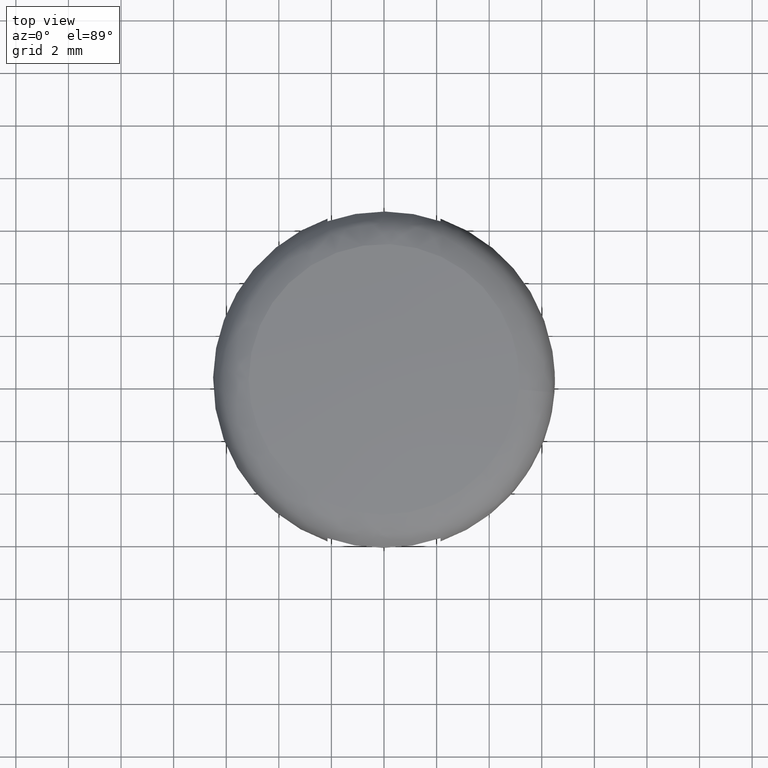
[diagram: clean part render]
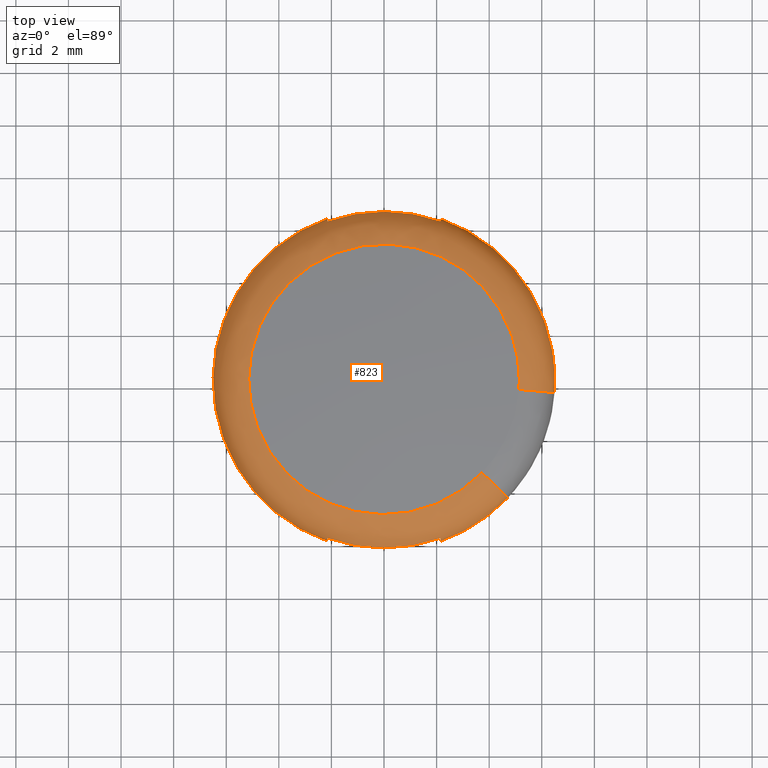
[diagram: same view with one face highlighted and labeled with its STEP entity id]
A machine part, top view. The second image highlights one B-rep face of the part: STEP entity #823.
In plain terms, the highlighted face is a freeform B-spline surface patch.
Its self-contained STEP definition (entity closure, byte-faithful):
#574=CARTESIAN_POINT('',(3.652641905491192,-3.481871914485794,-0.244006956247529));
#575=CARTESIAN_POINT('',(2.003378644397648,-5.212024042022337,-0.244006956247530));
#576=CARTESIAN_POINT('',(-0.380122264990558,-5.031970983848549,-0.244006956247529));
#577=CARTESIAN_POINT('',(-5.412093248839107,-4.651848718857992,-0.244006956247529));
#578=CARTESIAN_POINT('',(-5.031970983848549,0.380122264990557,-0.244006956247529));
#579=CARTESIAN_POINT('',(-4.651848718857994,5.412093248839107,-0.244006956247529));
#580=CARTESIAN_POINT('',(0.380122264990557,5.031970983848549,-0.244006956247529));
#581=CARTESIAN_POINT('',(5.412093248839107,4.651848718857994,-0.244006956247529));
#582=CARTESIAN_POINT('',(5.031970983848549,-0.380122264990557,-0.244006956247529));
#583=CARTESIAN_POINT('',(4.776795420311652,-4.553468488171132,-0.291976386504025));
#584=CARTESIAN_POINT('',(2.619947473997442,-6.816100022577632,-0.291976386504024));
#585=CARTESIAN_POINT('',(-0.497110404344773,-6.580633024730223,-0.291976386504024));
#586=CARTESIAN_POINT('',(-7.077743429074996,-6.083522620385448,-0.291976386504024));
#587=CARTESIAN_POINT('',(-6.580633024730223,0.497110404344772,-0.291976386504024));
#588=CARTESIAN_POINT('',(-6.083522620385448,7.077743429074994,-0.291976386504024));
#589=CARTESIAN_POINT('',(0.497110404344772,6.580633024730223,-0.291976386504024));
#590=CARTESIAN_POINT('',(7.077743429074994,6.083522620385450,-0.291976386504024));
#591=CARTESIAN_POINT('',(6.580633024730223,-0.497110404344772,-0.291976386504024));
#592=CARTESIAN_POINT('',(4.702487581443983,-4.482634723495075,-1.842396436271542));
#593=CARTESIAN_POINT('',(2.579191565986032,-6.710068757342802,-1.842396436271541));
#594=CARTESIAN_POINT('',(-0.489377353925987,-6.478264684572794,-1.842396436271542));
#595=CARTESIAN_POINT('',(-6.967642038498783,-5.988887330646809,-1.842396436271542));
#596=CARTESIAN_POINT('',(-6.478264684572795,0.489377353925987,-1.842396436271542));
#597=CARTESIAN_POINT('',(-5.988887330646809,6.967642038498783,-1.842396436271542));
#598=CARTESIAN_POINT('',(0.489377353925987,6.478264684572795,-1.842396436271542));
#599=CARTESIAN_POINT('',(6.967642038498782,5.988887330646810,-1.842396436271542));
#600=CARTESIAN_POINT('',(6.478264684572795,-0.489377353925986,-1.842396436271542));
#608=(BOUNDED_SURFACE()B_SPLINE_SURFACE(2,2,((#574,#583,#592),(#575,#584,#593),(#576,#585,#594),(#577,#586,#595),(#578,#587,#596),(#579,#588,#597),(#580,#589,#598),(#581,#590,#599),(#582,#591,#600)),.UNSPECIFIED.,.F.,.F.,.U.)B_SPLINE_SURFACE_WITH_KNOTS((3,2,2,2,3),(3,3),(0.0,6.027907881637133,16.792030198717761,27.556152515798392,38.320274832879022),(0.0,2.547437922517006),.UNSPECIFIED.)GEOMETRIC_REPRESENTATION_ITEM()RATIONAL_B_SPLINE_SURFACE(((0.781748324357103,0.543995852008917,0.784751275916700),(0.763766128048889,0.531482566214894,0.766700004098163),(0.913617906860468,0.635760047278504,0.917127412711393),(0.646025417354496,0.449550240638110,0.648507012740299),(0.913617906860468,0.635760047278504,0.917127412711393),(0.646025417354496,0.449550240638110,0.648507012740299),(0.913617906860468,0.635760047278504,0.917127412711393),(0.646025417354496,0.449550240638110,0.648507012740299),(0.913617906860468,0.635760047278504,0.917127412711393)))REPRESENTATION_ITEM('')SURFACE());
#609=CARTESIAN_POINT('',(4.704860325348079,-4.484895686519984,-1.743291908476284));
#610=VERTEX_POINT('',#609);
#611=CARTESIAN_POINT('',(2.150001525878870,-6.134125319776131,-1.743291908500535));
#612=VERTEX_POINT('',#611);
#613=CARTESIAN_POINT('',(4.704860325348079,-4.484895686519984,-1.743291908476283));
#614=CARTESIAN_POINT('',(3.625827220261339,-5.616850675154202,-1.743291908500545));
#615=CARTESIAN_POINT('',(2.150001525878870,-6.134125319776131,-1.743291908500535));
#623=(BOUNDED_CURVE()B_SPLINE_CURVE(2,(#613,#614,#615),.UNSPECIFIED.,.F.,.U.)B_SPLINE_CURVE_WITH_KNOTS((3,3),(0.806845306932453,1.0),.UNSPECIFIED.)CURVE()GEOMETRIC_REPRESENTATION_ITEM()RATIONAL_B_SPLINE_CURVE((0.912619661849907,0.928807499922650,1.0))REPRESENTATION_ITEM(''));
#624=EDGE_CURVE('',#610,#612,#623,.T.);
#625=ORIENTED_EDGE('',*,*,#624,.T.);
#626=CARTESIAN_POINT('',(2.150001525878870,-6.026098189873850,-1.199998974800082));
#627=VERTEX_POINT('',#626);
#628=CARTESIAN_POINT('',(2.150001525878873,-6.026098189873856,-1.199998974800079));
#629=CARTESIAN_POINT('',(2.150001525878873,-6.043774873285869,-1.242844259704022));
#630=CARTESIAN_POINT('',(2.150001525878873,-6.059463733877911,-1.286711726799545));
#631=CARTESIAN_POINT('',(2.150001525878873,-6.086673463350138,-1.376589933952211));
#632=CARTESIAN_POINT('',(2.150001525878873,-6.097934773312467,-1.421729458173797));
#633=CARTESIAN_POINT('',(2.150001525878873,-6.125010707899626,-1.558108134185250));
#634=CARTESIAN_POINT('',(2.150001525878873,-6.134125315461238,-1.650135051548341));
#635=CARTESIAN_POINT('',(2.150001525878873,-6.134125319776135,-1.743291908500534));
#636=B_SPLINE_CURVE_WITH_KNOTS('',3,(#628,#629,#630,#631,#632,#633,#634,#635),.UNSPECIFIED.,.F.,.U.,(4,2,2,4),(0.0,0.250000000000000,0.500000000000000,1.0),.UNSPECIFIED.);
#637=EDGE_CURVE('',#627,#612,#636,.T.);
#638=ORIENTED_EDGE('',*,*,#637,.F.);
#639=CARTESIAN_POINT('',(-2.149999618530295,-6.026098870380570,-1.199998974800082));
#640=VERTEX_POINT('',#639);
#641=CARTESIAN_POINT('',(2.150001525878871,-6.026098189873856,-1.199998974800082));
#642=CARTESIAN_POINT('',(0.000001075070396,-6.793178994771136,-1.199998974800083));
#643=CARTESIAN_POINT('',(-2.149999618530296,-6.026098870380573,-1.199998974800082));
#651=(BOUNDED_CURVE()B_SPLINE_CURVE(2,(#641,#642,#643),.UNSPECIFIED.,.F.,.U.)CURVE()GEOMETRIC_REPRESENTATION_ITEM()QUASI_UNIFORM_CURVE()RATIONAL_B_SPLINE_CURVE((1.0,0.941849659600944,1.0))REPRESENTATION_ITEM(''));
#652=EDGE_CURVE('',#627,#640,#651,.T.);
#653=ORIENTED_EDGE('',*,*,#652,.T.);
#654=CARTESIAN_POINT('',(-2.149999618530295,-6.134125988298540,-1.743291908500535));
#655=VERTEX_POINT('',#654);
#656=CARTESIAN_POINT('',(-2.149999618530295,-6.134125988298550,-1.743291908500537));
#657=CARTESIAN_POINT('',(-2.149999618530295,-6.134125986145037,-1.696798448108795));
#658=CARTESIAN_POINT('',(-2.149999618530296,-6.131808862544544,-1.649950252107606));
#659=CARTESIAN_POINT('',(-2.149999618530295,-6.122648588914346,-1.557466954262063));
#660=CARTESIAN_POINT('',(-2.149999618530295,-6.115814017154135,-1.511598008203608));
#661=CARTESIAN_POINT('',(-2.149999618530295,-6.097673658828421,-1.420599296682041));
#662=CARTESIAN_POINT('',(-2.149999618530294,-6.086322483635954,-1.375321186762625));
#663=CARTESIAN_POINT('',(-2.149999618530294,-6.059257002981673,-1.286136042608685));
#664=CARTESIAN_POINT('',(-2.149999618530294,-6.043664108317575,-1.242574139566649));
#665=CARTESIAN_POINT('',(-2.149999618530295,-6.026098870380570,-1.199998974800082));
#666=B_SPLINE_CURVE_WITH_KNOTS('',3,(#656,#657,#658,#659,#660,#661,#662,#663,#664,#665),.UNSPECIFIED.,.F.,.U.,(4,2,2,2,4),(0.0,0.250000000000000,0.500000000000000,0.750000000000000,1.0),.UNSPECIFIED.);
#667=EDGE_CURVE('',#655,#640,#666,.T.);
#668=ORIENTED_EDGE('',*,*,#667,.F.);
#669=CARTESIAN_POINT('',(-2.149999618530295,6.134125988298540,-1.743291908500535));
#670=VERTEX_POINT('',#669);
#671=CARTESIAN_POINT('',(-2.149999618530295,-6.134125988298540,-1.743291908500535));
#672=CARTESIAN_POINT('',(-6.500000000000000,-4.609459038417285,-1.743291908500565));
#673=CARTESIAN_POINT('',(-6.500000000000000,0.0,-1.743291908500565));
#674=CARTESIAN_POINT('',(-6.499999999999999,4.609459038417281,-1.743291908500565));
#675=CARTESIAN_POINT('',(-2.149999618530295,6.134125988298540,-1.743291908500535));
#683=(BOUNDED_CURVE()B_SPLINE_CURVE(2,(#671,#672,#673,#674,#675),.UNSPECIFIED.,.F.,.U.)B_SPLINE_CURVE_WITH_KNOTS((3,2,3),(0.0,0.500000000000000,1.0),.UNSPECIFIED.)CURVE()GEOMETRIC_REPRESENTATION_ITEM()RATIONAL_B_SPLINE_CURVE((1.0,0.815711092262936,1.0,0.815711092262936,1.0))REPRESENTATION_ITEM(''));
#684=EDGE_CURVE('',#655,#670,#683,.T.);
#685=ORIENTED_EDGE('',*,*,#684,.T.);
#686=CARTESIAN_POINT('',(-2.149999618530295,6.026098870380570,-1.199998974800082));
#687=VERTEX_POINT('',#686);
#688=CARTESIAN_POINT('',(-2.149999618530294,6.026098870380575,-1.199998974800079));
#689=CARTESIAN_POINT('',(-2.149999618530295,6.043735366669204,-1.242746857754870));
#690=CARTESIAN_POINT('',(-2.149999618530294,6.059362351260538,-1.286438673511951));
#691=CARTESIAN_POINT('',(-2.149999618530293,6.086448166522566,-1.375780222074311));
#692=CARTESIAN_POINT('',(-2.149999618530294,6.097882647894284,-1.421476642339116));
#693=CARTESIAN_POINT('',(-2.149999618530295,6.125071367093145,-1.558384085467656));
#694=CARTESIAN_POINT('',(-2.149999618530295,6.134125983998136,-1.650444383324917));
#695=CARTESIAN_POINT('',(-2.149999618530295,6.134125988298540,-1.743291908500535));
#696=B_SPLINE_CURVE_WITH_KNOTS('',3,(#688,#689,#690,#691,#692,#693,#694,#695),.UNSPECIFIED.,.F.,.U.,(4,2,2,4),(0.0,0.250000000000000,0.499999999999999,1.0),.UNSPECIFIED.);
#697=EDGE_CURVE('',#687,#670,#696,.T.);
#698=ORIENTED_EDGE('',*,*,#697,.F.);
#699=CARTESIAN_POINT('',(2.150001525878870,6.026098189873850,-1.199998974800082));
#700=VERTEX_POINT('',#699);
#701=CARTESIAN_POINT('',(-2.149999618530297,6.026098870380572,-1.199998974800082));
#702=CARTESIAN_POINT('',(0.000001075070396,6.793178994771136,-1.199998974800083));
#703=CARTESIAN_POINT('',(2.150001525878870,6.026098189873856,-1.199998974800082));
#711=(BOUNDED_CURVE()B_SPLINE_CURVE(2,(#701,#702,#703),.UNSPECIFIED.,.F.,.U.)CURVE()GEOMETRIC_REPRESENTATION_ITEM()QUASI_UNIFORM_CURVE()RATIONAL_B_SPLINE_CURVE((1.0,0.941849659600944,1.0))REPRESENTATION_ITEM(''));
#712=EDGE_CURVE('',#687,#700,#711,.T.);
#713=ORIENTED_EDGE('',*,*,#712,.T.);
#714=CARTESIAN_POINT('',(2.150001525878870,6.134125319776131,-1.743291908500535));
#715=VERTEX_POINT('',#714);
#716=CARTESIAN_POINT('',(2.150001525878873,6.134125319776141,-1.743291908500536));
#717=CARTESIAN_POINT('',(2.150001525878873,6.134125317621002,-1.696763286604360));
#718=CARTESIAN_POINT('',(2.150001525878873,6.131797369284235,-1.649762995454150));
#719=CARTESIAN_POINT('',(2.150001525878872,6.122612426085542,-1.557186977663314));
#720=CARTESIAN_POINT('',(2.150001525878873,6.115772903628863,-1.511391443020756));
#721=CARTESIAN_POINT('',(2.150001525878873,6.088670669308830,-1.375447746560756));
#722=CARTESIAN_POINT('',(2.150001525878873,6.061790945403919,-1.286512165314830));
#723=CARTESIAN_POINT('',(2.150001525878873,6.026098189873856,-1.199998974800078));
#724=B_SPLINE_CURVE_WITH_KNOTS('',3,(#716,#717,#718,#719,#720,#721,#722,#723),.UNSPECIFIED.,.F.,.U.,(4,2,2,4),(0.0,0.250000000000000,0.500000000000000,1.0),.UNSPECIFIED.);
#725=EDGE_CURVE('',#715,#700,#724,.T.);
#726=ORIENTED_EDGE('',*,*,#725,.F.);
#727=CARTESIAN_POINT('',(6.481532851692670,-0.489624235949027,-1.743291908475973));
#728=VERTEX_POINT('',#727);
#729=CARTESIAN_POINT('',(2.150001525878870,6.134125319776131,-1.743291908500535));
#730=CARTESIAN_POINT('',(6.500000000000000,4.609457519661384,-1.743291908500565));
#731=CARTESIAN_POINT('',(6.500000000000000,0.0,-1.743291908500565));
#732=CARTESIAN_POINT('',(6.499999999999999,-0.245160380529911,-1.743291908500565));
#733=CARTESIAN_POINT('',(6.481532851692670,-0.489624235949027,-1.743291908475974));
#741=(BOUNDED_CURVE()B_SPLINE_CURVE(2,(#729,#730,#731,#732,#733),.UNSPECIFIED.,.F.,.U.)B_SPLINE_CURVE_WITH_KNOTS((3,2,3),(0.0,0.500000000000000,0.532214147474491),.UNSPECIFIED.)CURVE()GEOMETRIC_REPRESENTATION_ITEM()RATIONAL_B_SPLINE_CURVE((1.0,0.815711182196194,1.0,0.988126585690737,0.977783139059812))REPRESENTATION_ITEM(''));
#742=EDGE_CURVE('',#715,#728,#741,.T.);
#743=ORIENTED_EDGE('',*,*,#742,.T.);
#744=CARTESIAN_POINT('',(5.131011887636867,-0.387603956489561,-0.250378188423155));
#745=VERTEX_POINT('',#744);
#746=CARTESIAN_POINT('',(5.131011887636868,-0.387603956489561,-0.250378188423155));
#747=CARTESIAN_POINT('',(6.481532792336135,-0.489624231447584,-0.382494507476526));
#748=CARTESIAN_POINT('',(6.481532851692670,-0.489624235949027,-1.743291908475974));
#756=(BOUNDED_CURVE()B_SPLINE_CURVE(2,(#746,#747,#748),.UNSPECIFIED.,.F.,.U.)B_SPLINE_CURVE_WITH_KNOTS((3,3),(-1.712611199167973,-0.277482523269087),.UNSPECIFIED.)CURVE()GEOMETRIC_REPRESENTATION_ITEM()RATIONAL_B_SPLINE_CURVE((0.889534353108334,0.660002952956948,0.892725155837740))REPRESENTATION_ITEM(''));
#757=EDGE_CURVE('',#745,#728,#756,.T.);
#758=ORIENTED_EDGE('',*,*,#757,.F.);
#759=CARTESIAN_POINT('',(5.145631136834160,0.0,-0.250378188216518));
#760=VERTEX_POINT('',#759);
#761=CARTESIAN_POINT('',(5.145631136834160,0.0,-0.250378188216518));
#762=CARTESIAN_POINT('',(5.145631136834161,-0.194077675366102,-0.250378188216518));
#763=CARTESIAN_POINT('',(5.131011887636867,-0.387603956489561,-0.250378188423155));
#771=(BOUNDED_CURVE()B_SPLINE_CURVE(2,(#761,#762,#763),.UNSPECIFIED.,.F.,.U.)B_SPLINE_CURVE_WITH_KNOTS((3,3),(0.500000000000000,0.513129840762218),.UNSPECIFIED.)CURVE()GEOMETRIC_REPRESENTATION_ITEM()RATIONAL_B_SPLINE_CURVE((1.0,0.984617434706583,0.970850634475702))REPRESENTATION_ITEM(''));
#772=EDGE_CURVE('',#760,#745,#771,.T.);
#773=ORIENTED_EDGE('',*,*,#772,.F.);
#774=CARTESIAN_POINT('',(-5.145631136834160,0.0,-0.250378188216518));
#775=VERTEX_POINT('',#774);
#776=CARTESIAN_POINT('',(-5.145631136834160,0.0,-0.250378188216518));
#777=CARTESIAN_POINT('',(-5.145631136834159,5.145631136834159,-0.250378188216518));
#778=CARTESIAN_POINT('',(0.0,5.145631136834160,-0.250378188216518));
#779=CARTESIAN_POINT('',(5.145631136834159,5.145631136834159,-0.250378188216518));
#780=CARTESIAN_POINT('',(5.145631136834160,0.0,-0.250378188216518));
#788=(BOUNDED_CURVE()B_SPLINE_CURVE(2,(#776,#777,#778,#779,#780),.UNSPECIFIED.,.F.,.U.)B_SPLINE_CURVE_WITH_KNOTS((3,2,3),(0.0,0.250000000000000,0.500000000000000),.UNSPECIFIED.)CURVE()GEOMETRIC_REPRESENTATION_ITEM()RATIONAL_B_SPLINE_CURVE((1.0,0.707106781186548,1.0,0.707106781186548,1.0))REPRESENTATION_ITEM(''));
#789=EDGE_CURVE('',#775,#760,#788,.T.);
#790=ORIENTED_EDGE('',*,*,#789,.F.);
#791=CARTESIAN_POINT('',(3.724534737638783,-3.550402907652273,-0.250378188426818));
#792=VERTEX_POINT('',#791);
#793=CARTESIAN_POINT('',(3.724534737638784,-3.550402907652273,-0.250378188426818));
#794=CARTESIAN_POINT('',(2.203887635829804,-5.145631136834160,-0.250378188216518));
#795=CARTESIAN_POINT('',(0.0,-5.145631136834160,-0.250378188216518));
#796=CARTESIAN_POINT('',(-5.145631136834159,-5.145631136834159,-0.250378188216518));
#797=CARTESIAN_POINT('',(-5.145631136834160,0.0,-0.250378188216518));
#805=(BOUNDED_CURVE()B_SPLINE_CURVE(2,(#793,#794,#795,#796,#797),.UNSPECIFIED.,.F.,.U.)B_SPLINE_CURVE_WITH_KNOTS((3,2,3),(0.621388876010881,0.750000000000000,1.0),.UNSPECIFIED.)CURVE()GEOMETRIC_REPRESENTATION_ITEM()RATIONAL_B_SPLINE_CURVE((0.853675611104455,0.849322695678444,1.0,0.707106781186548,1.0))REPRESENTATION_ITEM(''));
#806=EDGE_CURVE('',#792,#775,#805,.T.);
#807=ORIENTED_EDGE('',*,*,#806,.F.);
#808=CARTESIAN_POINT('',(3.724534737638783,-3.550402907652273,-0.250378188426818));
#809=CARTESIAN_POINT('',(4.704860282261134,-4.484895645448003,-0.382494507545372));
#810=CARTESIAN_POINT('',(4.704860325348079,-4.484895686519983,-1.743291908476284));
#818=(BOUNDED_CURVE()B_SPLINE_CURVE(2,(#808,#809,#810),.UNSPECIFIED.,.F.,.U.)B_SPLINE_CURVE_WITH_KNOTS((3,3),(-1.712611199114338,-0.277482523268636),.UNSPECIFIED.)CURVE()GEOMETRIC_REPRESENTATION_ITEM()RATIONAL_B_SPLINE_CURVE((0.761140940905608,0.564739593108446,0.763871190273082))REPRESENTATION_ITEM(''));
#819=EDGE_CURVE('',#792,#610,#818,.T.);
#820=ORIENTED_EDGE('',*,*,#819,.T.);
#821=EDGE_LOOP('',(#625,#638,#653,#668,#685,#698,#713,#726,#743,#758,#773,#790,#807,#820));
#822=FACE_OUTER_BOUND('',#821,.T.);
#823=ADVANCED_FACE('',(#822),#608,.F.);